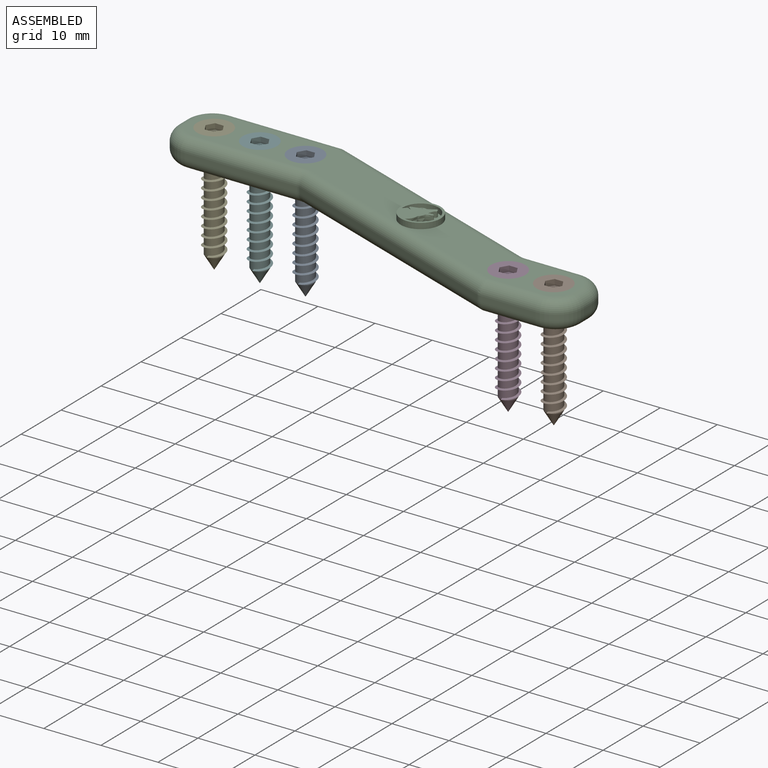
[diagram: assembled view]
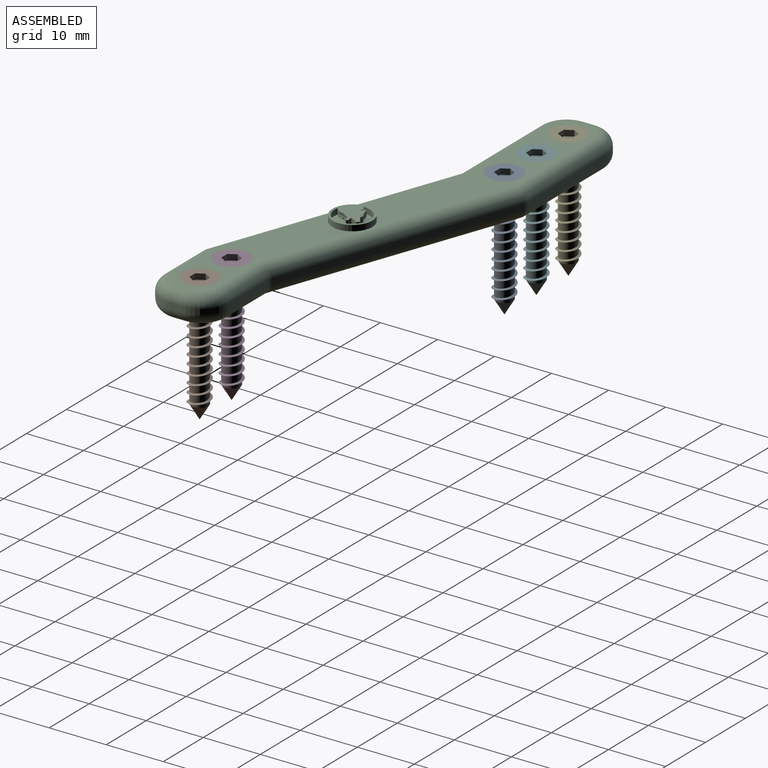
[diagram: assembled view, second angle]
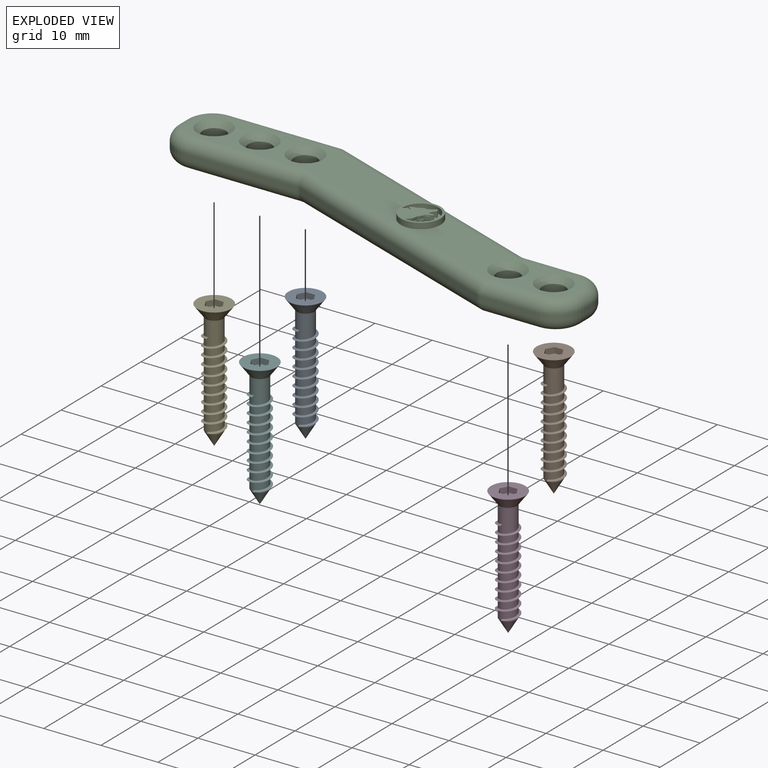
[diagram: exploded view]
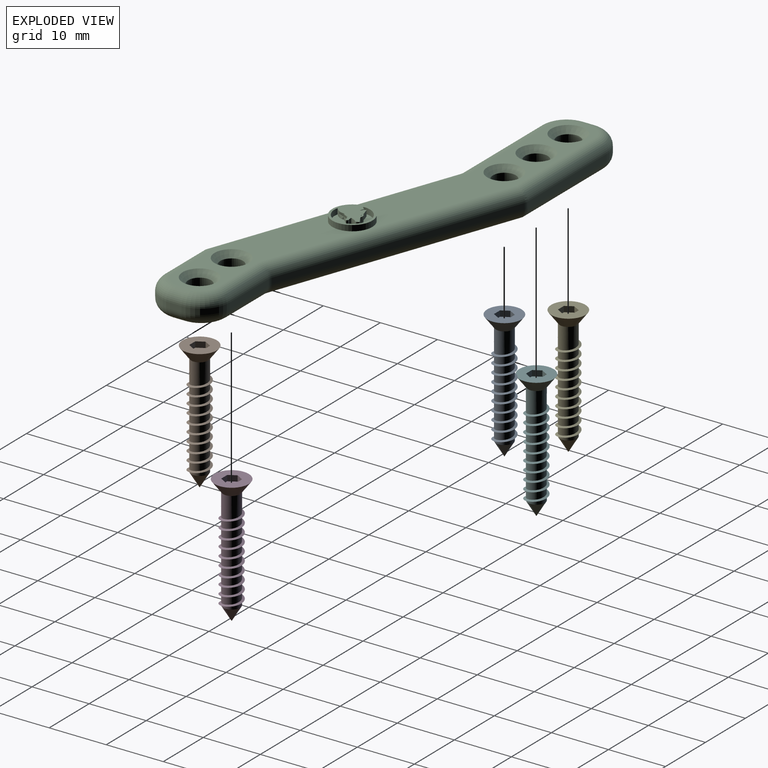
[diagram: exploded view, second angle]
ASSEMBLY  parts=6 mates=5
PART A: 25 faces, bbox 6x22.5x6 mm
  f0: plane 6x6mm, normal (0,1,0), area 22.4mm2, adj f1,f18,f19,f20,f21,f22,f23
  f1: cone r=3mm half-angle=36.9deg, axis (0,1,0), area 35.3mm2, adj f0,f2
  f2: cylinder r=1.5mm len=4.2mm, axis (0,1,0), area 32.5mm2, adj f1,f3,f13,f16
  f3: cylinder r=1.5mm len=3mm, axis (0,1,0), area 11.3mm2, adj f2,f4,f15,f16
  f4: cylinder r=1.5mm len=3mm, axis (0,1,0), area 11.3mm2, adj f3,f5,f15,f16
  f5: cylinder r=1.5mm len=3mm, axis (0,1,0), area 11.3mm2, adj f4,f6,f15,f16
  f6: cylinder r=1.5mm len=3mm, axis (0,1,0), area 11.3mm2, adj f5,f7,f15,f16
  f7: cylinder r=1.5mm len=3mm, axis (0,1,0), area 11.3mm2, adj f6,f8,f15,f16
  f8: cylinder r=1.5mm len=3mm, axis (0,1,0), area 11.3mm2, adj f7,f9,f15,f16
  f9: cylinder r=1.5mm len=3mm, axis (0,1,0), area 11.3mm2, adj f8,f10,f15,f16
  f10: cylinder r=1.5mm len=3mm, axis (0,1,0), area 11.3mm2, adj f9,f11,f15,f16
  f11: cylinder r=1.5mm len=3mm, axis (0,1,0), area 11.3mm2, adj f10,f12,f15,f16
  f12: cylinder r=1.5mm len=3mm, axis (0,1,0), area 7.1mm2, adj f11,f14,f15,f17
  f13: plane 0.4x0.3mm, normal (1,0,0), area 0.1mm2, adj f2,f15,f16
  f14: plane 0.4x0.3mm, normal (-1,0,0), area 0.1mm2, adj f12,f15,f16
  f15: bspline ~15.15x4.39mm, area 45.9mm2, adj f3,f4,f5,f6,f7,f8,f9,f10
  f16: bspline ~15.15x4.39mm, area 46mm2, adj f2,f3,f4,f5,f6,f7,f8,f9
  f17: cone r=1.5mm half-angle=31deg, axis (0,1,0), area 13.7mm2, adj f12
  f18: plane 1.3x1mm, normal (0.87,0,0.5), area 1.5mm2, adj f0,f19,f23,f24
  f19: plane 1.3x1mm, normal (0.87,0,-0.5), area 1.5mm2, adj f0,f18,f20,f24
  f20: plane 1.5x1mm, normal (0,0,-1), area 1.5mm2, adj f0,f19,f21,f24
  f21: plane 1.3x1mm, normal (-0.87,0,-0.5), area 1.5mm2, adj f0,f20,f22,f24
  f22: plane 1.3x1mm, normal (-0.87,0,0.5), area 1.5mm2, adj f0,f21,f23,f24
  f23: plane 1.5x1mm, normal (0,0,1), area 1.5mm2, adj f0,f18,f22,f24
  f24: plane 3x2.6mm, normal (0,1,0), area 5.8mm2, adj f18,f19,f20,f21,f22,f23
PART B: same geometry as A
PART C: 67 faces, bbox 83.1x28.2x6 mm
  f0: plane 78.29x23.39mm, normal (0,0,1), area 427.9mm2, adj f16,f18,f19,f24,f27,f28,f32,f36
  f1: plane 78.29x23.39mm, normal (0,0,-1), area 544.9mm2, adj f10,f11,f12,f13,f14,f17,f20,f21
  f2: plane 19.65x1mm, normal (0,1,0), area 19.6mm2, adj f22,f27,f31,f47
  f3: plane 2x1mm, normal (-1,0,0), area 2mm2, adj f32,f35,f44,f47
  f4: plane 19.65x1mm, normal (0,-1,0), area 19.6mm2, adj f36,f39,f42,f44
  f5: plane 41.62x15.15mm, normal (-0.34,-0.94,0), area 44.3mm2, adj f29,f37,f38,f42
  f6: plane 9.65x1mm, normal (0,-1,0), area 9.6mm2, adj f28,f29,f30,f50
  f7: plane 2x1mm, normal (1,0,0), area 2mm2, adj f24,f25,f50,f53
  f8: plane 9.65x1mm, normal (0,1,0), area 9.6mm2, adj f15,f19,f20,f53
  f9: plane 41.62x15.15mm, normal (0.34,0.94,0), area 44.3mm2, adj f15,f18,f21,f22
  f10: cylinder r=2mm len=4mm, axis (0,0,1), area 50.3mm2, adj f1,f58
  f11: cylinder r=2mm len=4mm, axis (0,0,1), area 50.3mm2, adj f1,f55
  f12: cylinder r=2mm len=4mm, axis (0,0,1), area 50.3mm2, adj f1,f56
  f13: cylinder r=2mm len=4mm, axis (0,0,1), area 50.3mm2, adj f1,f57
  f14: cylinder r=2mm len=4mm, axis (0,0,1), area 50.3mm2, adj f1,f59
  f15: cylinder r=2mm len=1mm, axis (0,0,1), area 0.7mm2, adj f8,f9,f16,f17
  f16: torus R=4mm, axis (0,0,1), area 3mm2, adj f0,f15,f18,f19
  f17: torus R=4mm, axis (0,0,1), area 3mm2, adj f1,f15,f20,f21
  f18: cylinder r=2mm len=42.31mm, axis (0.94,-0.34,0), area 139.2mm2, adj f0,f9,f16,f23
  f19: cylinder r=2mm len=9.65mm, axis (1,0,0), area 30.3mm2, adj f0,f8,f16,f54
  f20: cylinder r=2mm len=9.65mm, axis (-1,0,0), area 30.3mm2, adj f1,f8,f17,f52
  f21: cylinder r=2mm len=42.31mm, axis (-0.94,0.34,0), area 139.2mm2, adj f1,f9,f17,f26
  f22: cylinder r=2mm len=1mm, axis (0,0,-1), area 0.7mm2, adj f2,f9,f23,f26
  f23: sphere r=2mm, area 1.4mm2, adj f18,f22,f27
  f24: cylinder r=2mm len=2mm, axis (0,-1,0), area 6.3mm2, adj f0,f7,f51,f54
  f25: cylinder r=2mm len=2mm, axis (0,1,0), area 6.3mm2, adj f1,f7,f49,f52
  f26: sphere r=2mm, area 1.4mm2, adj f21,f22,f31
  f27: cylinder r=2mm len=19.65mm, axis (1,0,0), area 61.7mm2, adj f0,f2,f23,f48
  f28: cylinder r=2mm len=9.65mm, axis (-1,0,0), area 30.3mm2, adj f0,f6,f33,f51
  f29: cylinder r=2mm len=1mm, axis (0,0,1), area 0.7mm2, adj f5,f6,f33,f34
  f30: cylinder r=2mm len=9.65mm, axis (1,0,0), area 30.3mm2, adj f1,f6,f34,f49
  f31: cylinder r=2mm len=19.65mm, axis (-1,0,0), area 61.7mm2, adj f1,f2,f26,f46
  f32: cylinder r=2mm len=2mm, axis (0,1,0), area 6.3mm2, adj f0,f3,f43,f48
  f33: sphere r=2mm, area 1.4mm2, adj f28,f29,f37
  f34: sphere r=2mm, area 1.4mm2, adj f29,f30,f38
  f35: cylinder r=2mm len=2mm, axis (0,-1,0), area 6.3mm2, adj f1,f3,f45,f46
  f36: cylinder r=2mm len=19.65mm, axis (-1,0,0), area 61.7mm2, adj f0,f4,f40,f43
  f37: cylinder r=2mm len=42.31mm, axis (-0.94,0.34,0), area 139.2mm2, adj f0,f5,f33,f40
  f38: cylinder r=2mm len=42.31mm, axis (0.94,-0.34,0), area 139.2mm2, adj f1,f5,f34,f41
  f39: cylinder r=2mm len=19.65mm, axis (1,0,0), area 61.7mm2, adj f1,f4,f41,f45
  f40: torus R=4mm, axis (0,0,1), area 3mm2, adj f0,f36,f37,f42
  f41: torus R=4mm, axis (0,0,1), area 3mm2, adj f1,f38,f39,f42
  f42: cylinder r=2mm len=1mm, axis (0,0,-1), area 0.7mm2, adj f4,f5,f40,f41
  f43: torus R=3mm, axis (0,0,1), area 21.1mm2, adj f0,f32,f36,f44
  f44: cylinder r=5mm len=5mm, axis (0,0,1), area 7.9mm2, adj f3,f4,f43,f45
  f45: torus R=3mm, axis (0,0,1), area 21.1mm2, adj f1,f35,f39,f44
  f46: torus R=3mm, axis (0,0,1), area 21.1mm2, adj f1,f31,f35,f47
  f47: cylinder r=5mm len=5mm, axis (0,0,-1), area 7.9mm2, adj f2,f3,f46,f48
  f48: torus R=3mm, axis (0,0,1), area 21.1mm2, adj f0,f27,f32,f47
  f49: torus R=3mm, axis (0,0,1), area 21.1mm2, adj f1,f25,f30,f50
  f50: cylinder r=5mm len=5mm, axis (0,0,1), area 7.9mm2, adj f6,f7,f49,f51
  f51: torus R=3mm, axis (0,0,1), area 21.1mm2, adj f0,f24,f28,f50
  f52: torus R=3mm, axis (0,0,1), area 21.1mm2, adj f1,f20,f25,f53
  f53: cylinder r=5mm len=5mm, axis (0,0,-1), area 7.9mm2, adj f7,f8,f52,f54
  f54: torus R=3mm, axis (0,0,1), area 21.1mm2, adj f0,f19,f24,f53
  f55: cone r=2mm half-angle=45deg, axis (0,0,1), area 22.2mm2, adj f0,f11
  f56: cone r=2mm half-angle=45deg, axis (0,0,1), area 22.2mm2, adj f0,f12
  f57: cone r=2mm half-angle=45deg, axis (0,0,1), area 22.2mm2, adj f0,f13
  f58: cone r=2mm half-angle=45deg, axis (0,0,1), area 22.2mm2, adj f0,f10
  f59: cone r=2mm half-angle=45deg, axis (0,0,1), area 22.2mm2, adj f0,f14
  f60: cylinder r=3.1mm len=6.2mm, axis (0,0,-1), area 15.5mm2, adj f62,f64,f66
  f61: cylinder r=3.5mm len=7mm, axis (0,0,-1), area 22mm2, adj f0,f64
  f62: extruded ~5.26x5.1mm, area 12.6mm2, adj f60,f64,f66
  f63: extruded ~1x0.39mm, area 0.9mm2, adj f64,f65
  f64: plane 7x7mm, normal (0,0,1), area 22.5mm2, adj f60,f61,f62,f63
  f65: plane 0.4x0.18mm, normal (0,0,1), area 0mm2, adj f63
  f66: plane 6.2x6.2mm, normal (0,0,1), area 16mm2, adj f60,f62
PART D: same geometry as A
PART E: same geometry as A
PART F: same geometry as A
PLACE A rot(axis=(1,0,0),90deg) t=(-18.58,7.75,1.6)mm
PLACE B rot(axis=(1,0,0),90deg) t=(35.7,-7.64,1.6)mm
PLACE C t=(-40.58,1.75,-3.4)mm fixed
PLACE D rot(axis=(1,0,0),90deg) t=(27.7,-7.64,1.6)mm
PLACE E rot(axis=(1,0,0),90deg) t=(-34.58,7.75,1.6)mm
PLACE F rot(axis=(1,0,0),90deg) t=(-26.58,7.75,1.6)mm
MATE slider B.f1 <-> C.f10  axis (0,0,1) through (35.7,-7.64,-9.4)mm
MATE slider A.f1 <-> C.f12  axis (0,0,1) through (-18.58,7.75,-9.4)mm
MATE slider D.f1 <-> C.f11  axis (0,0,1) through (27.7,-7.64,-9.4)mm
MATE slider E.f1 <-> C.f14  axis (0,0,1) through (-34.58,7.75,-9.4)mm
MATE slider F.f1 <-> C.f13  axis (0,0,1) through (-26.58,7.75,-9.4)mm
